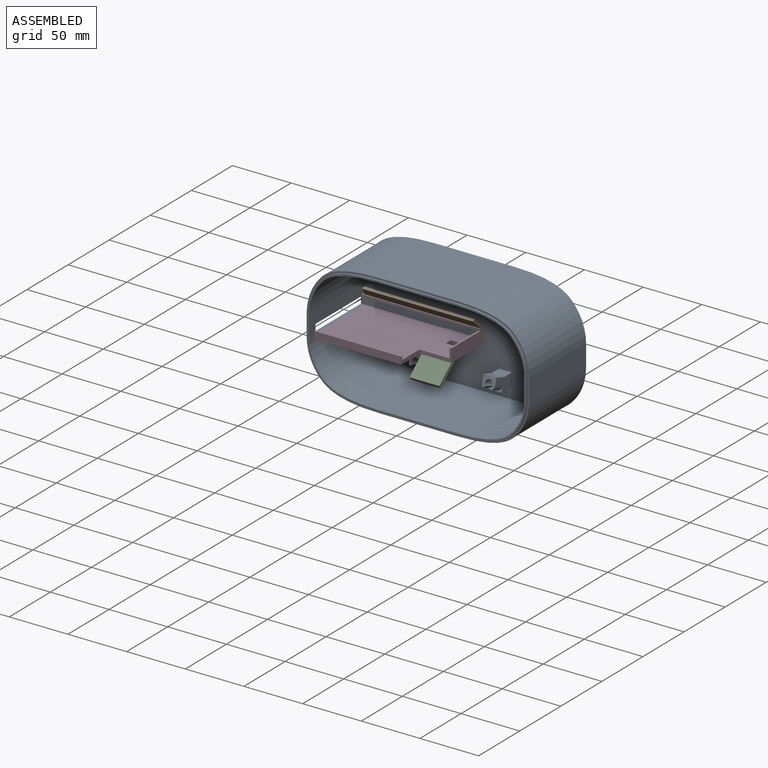
[diagram: assembled view]
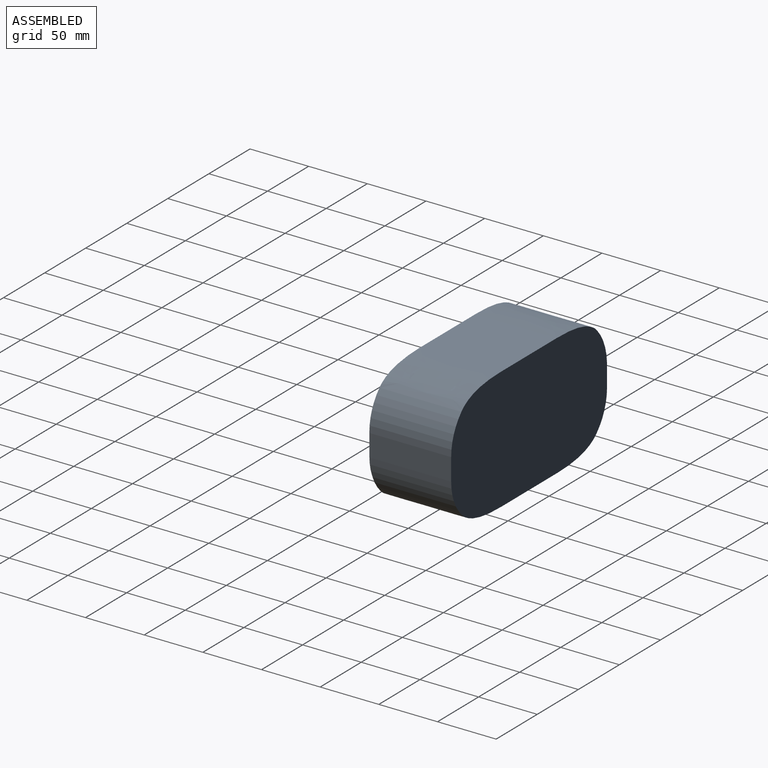
[diagram: assembled view, second angle]
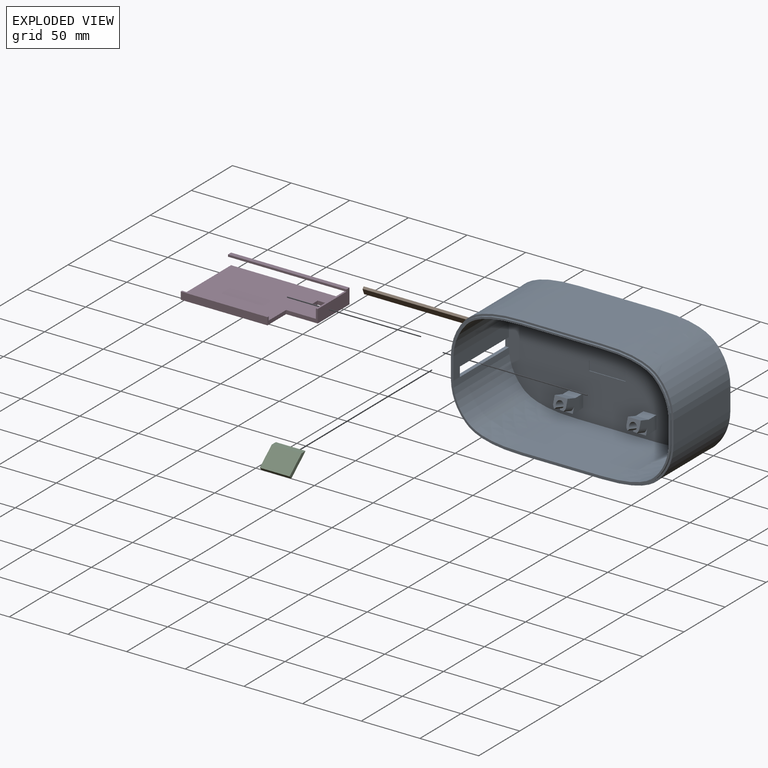
[diagram: exploded view]
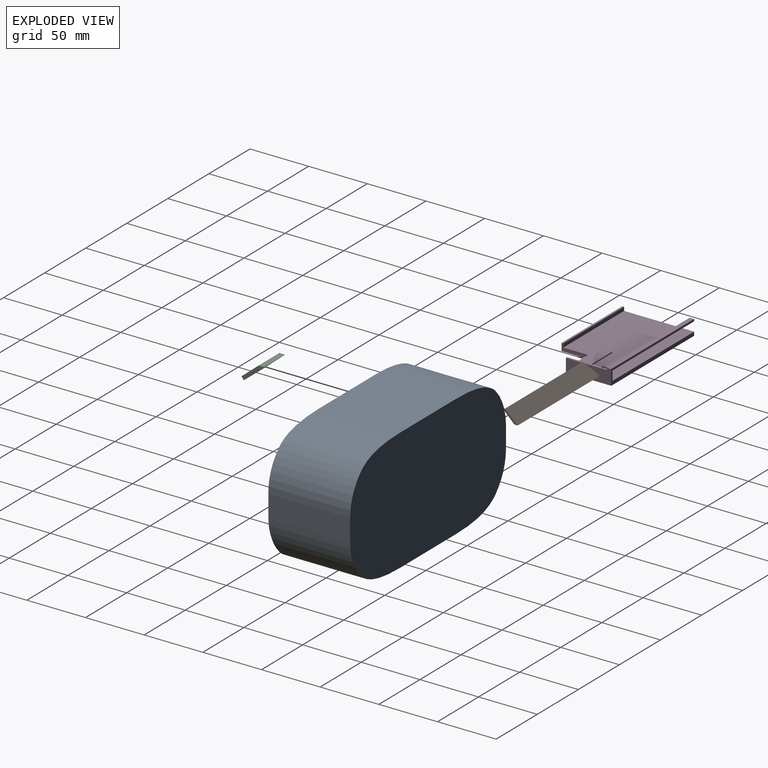
[diagram: exploded view, second angle]
ASSEMBLY  parts=4 mates=3
PART A: 72 faces, bbox 189.7x104.1x70.8 mm
  f0: plane 11x9.25mm, normal (0,1,0), area 101.8mm2, adj f2,f46,f48,f56
  f1: plane 11x9.25mm, normal (0,1,0), area 101.8mm2, adj f3,f46,f49,f63
  f2: plane 20.67x14.04mm, normal (1,0,0), area 179.3mm2, adj f0,f46,f47,f52,f55,f56,f59
  f3: plane 20.67x14.04mm, normal (-1,0,0), area 179.3mm2, adj f1,f46,f50,f51,f63,f64,f66
  f4: plane 69.22x18.88mm, normal (-1,0,0), area 828.9mm2, adj f5,f26,f27,f42,f43,f45,f46
  f5: plane 189.71x104.14mm, normal (0,0,1), area 805.4mm2, adj f4,f17,f18,f19,f20,f21,f22,f23
  f6: plane 67.8x67.63mm, normal (0,-1,0), area 4585.5mm2, adj f7,f28,f41,f46
  f7: extruded ~67.63x46.25mm, area 3302.1mm2, adj f6,f8,f41,f46
  f8: cylinder r=39.45mm len=67.63mm, axis (0,0,-1), area 2093.1mm2, adj f7,f9,f41,f46
  f9: plane 67.63x18.88mm, normal (-1,0,0), area 1276.9mm2, adj f8,f10,f41,f46
  f10: cylinder r=39.45mm len=67.63mm, axis (0,0,-1), area 2093.1mm2, adj f9,f11,f41,f46
  f11: extruded ~67.63x46.25mm, area 3302.1mm2, adj f10,f12,f41,f46
  f12: plane 67.8x67.63mm, normal (0,1,0), area 4585.5mm2, adj f11,f13,f41,f46
  f13: extruded ~67.63x46.25mm, area 3302.1mm2, adj f12,f14,f41,f46
  f14: cylinder r=39.45mm len=67.63mm, axis (0,0,-1), area 2093.1mm2, adj f13,f15,f41,f44,f46
  f15: plane 67.63x18.84mm, normal (1,0,0), area 795.8mm2, adj f14,f16,f41,f42,f43,f46
  f16: cylinder r=42.63mm len=67.63mm, axis (0,0,-1), area 2084.9mm2, adj f15,f28,f41,f46
  f17: extruded ~69.22x48.52mm, area 3555.3mm2, adj f5,f18,f27,f45
  f18: plane 69.22x67.8mm, normal (0,-1,0), area 4693.1mm2, adj f5,f17,f19,f45
  f19: extruded ~69.22x48.52mm, area 3555.3mm2, adj f5,f18,f20,f45
  f20: cylinder r=42.63mm len=69.22mm, axis (0,0,-1), area 2311.6mm2, adj f5,f19,f21,f45
  f21: plane 69.22x18.88mm, normal (1,0,0), area 1306.9mm2, adj f5,f20,f22,f45
  f22: cylinder r=42.63mm len=69.22mm, axis (0,0,-1), area 2311.6mm2, adj f5,f21,f23,f45
  f23: extruded ~69.22x48.52mm, area 3555.3mm2, adj f5,f22,f24,f45
  f24: plane 69.22x67.8mm, normal (0,1,0), area 4693.1mm2, adj f5,f23,f25,f45
  f25: extruded ~69.22x48.59mm, area 3562.3mm2, adj f5,f24,f26,f45
  f26: cylinder r=45.8mm len=69.22mm, axis (0,0,-1), area 2296.3mm2, adj f4,f5,f25,f45
  f27: cylinder r=42.63mm len=69.22mm, axis (0,0,-1), area 2311.6mm2, adj f4,f5,f17,f44,f45
  f28: extruded ~67.63x46.28mm, area 3305.2mm2, adj f6,f16,f41,f46
  f29: plane 67.8x1.59mm, normal (0,-1,0), area 107.6mm2, adj f5,f30,f40,f41
  f30: extruded ~47.39x12.06mm, area 79.5mm2, adj f5,f29,f31,f41
  f31: cylinder r=41.04mm len=28.98mm, axis (0,0,-1), area 51.1mm2, adj f5,f30,f32,f41
  f32: plane 18.88x1.59mm, normal (1,0,0), area 30mm2, adj f5,f31,f33,f41
  f33: cylinder r=41.04mm len=28.98mm, axis (0,0,-1), area 51.1mm2, adj f5,f32,f34,f41
  f34: extruded ~47.39x12.06mm, area 79.5mm2, adj f5,f33,f35,f41
  f35: plane 67.8x1.59mm, normal (0,1,0), area 107.6mm2, adj f5,f34,f36,f41
  f36: extruded ~47.44x12.12mm, area 79.6mm2, adj f5,f35,f37,f41
  f37: cylinder r=44.21mm len=28.95mm, axis (0,0,-1), area 50.8mm2, adj f5,f36,f38,f41
  f38: plane 18.86x1.59mm, normal (-1,0,0), area 29.9mm2, adj f5,f37,f39,f41
  f39: cylinder r=41.04mm len=28.98mm, axis (0,0,-1), area 51.1mm2, adj f5,f38,f40,f41
  f40: extruded ~47.39x12.06mm, area 79.5mm2, adj f5,f29,f39,f41
  f41: plane 186.53x100.97mm, normal (0,0,1), area 789.5mm2, adj f6,f7,f8,f9,f10,f11,f12,f13
  f42: plane 59.74x3.18mm, normal (0,-1,0), area 189.7mm2, adj f4,f15,f43,f46
  f43: plane 8x3.18mm, normal (0,0,-1), area 25.4mm2, adj f4,f15,f42,f44
  f44: plane 59.74x3.18mm, normal (0,1,0), area 189.7mm2, adj f14,f27,f43,f46
  f45: plane 189.71x104.14mm, normal (0,0,-1), area 18066.7mm2, adj f4,f17,f18,f19,f20,f21,f22,f23
  f46: plane 186.53x97.79mm, normal (0,0,1), area 16007.2mm2, adj f0,f1,f2,f3,f4,f6,f7,f8
  f47: plane 12.7x11mm, normal (0,-1,0), area 139.7mm2, adj f2,f46,f48,f52
  f48: plane 20.67x14.04mm, normal (-1,0,0), area 179.3mm2, adj f0,f46,f47,f52,f56,f57,f59
  f49: plane 20.67x14.04mm, normal (1,0,0), area 179.3mm2, adj f1,f46,f50,f51,f62,f63,f66
  f50: plane 12.7x11mm, normal (0,-1,0), area 139.7mm2, adj f3,f46,f49,f51
  f51: plane 11x8.65mm, normal (0,0.3,0.95), area 65.3mm2, adj f3,f49,f50,f60,f61,f62,f64,f65
  f52: plane 11x8.65mm, normal (0,0.3,0.95), area 65.3mm2, adj f2,f47,f48,f53,f54,f55,f57,f58
  f53: cylinder r=3.3mm len=11.38mm, axis (0,-0.3,-0.95), area 158.1mm2, adj f52,f54,f58,f59
  f54: plane 10.16x4.52mm, normal (-0.71,-0.67,0.21), area 22.3mm2, adj f52,f53,f55,f59
  f55: cylinder r=5.5mm len=10.86mm, axis (0,-0.3,-0.95), area 43.9mm2, adj f2,f52,f54,f59
  f56: plane 11x9.7mm, normal (0,0.95,-0.3), area 111.8mm2, adj f0,f2,f48,f59
  f57: cylinder r=5.5mm len=10.86mm, axis (0,-0.3,-0.95), area 43.9mm2, adj f48,f52,f58,f59
  f58: plane 10.16x4.52mm, normal (0.71,-0.67,0.21), area 22.3mm2, adj f52,f53,f57,f59
  f59: plane 11x9.21mm, normal (0,0.3,0.95), area 61.5mm2, adj f2,f48,f53,f54,f55,f56,f57,f58
  f60: cylinder r=3.3mm len=11.38mm, axis (0,-0.3,-0.95), area 158.1mm2, adj f51,f61,f65,f66
  f61: plane 10.16x4.52mm, normal (-0.71,-0.67,0.21), area 22.3mm2, adj f51,f60,f62,f66
  f62: cylinder r=5.5mm len=10.86mm, axis (0,-0.3,-0.95), area 43.9mm2, adj f49,f51,f61,f66
  f63: plane 11x9.7mm, normal (0,0.95,-0.3), area 111.8mm2, adj f1,f3,f49,f66
  f64: cylinder r=5.5mm len=10.86mm, axis (0,-0.3,-0.95), area 43.9mm2, adj f3,f51,f65,f66
  f65: plane 10.16x4.52mm, normal (0.71,-0.67,0.21), area 22.3mm2, adj f51,f60,f64,f66
  f66: plane 11x9.21mm, normal (0,0.3,0.95), area 61.5mm2, adj f3,f49,f60,f61,f62,f63,f64,f65
  f67: plane 8x0.51mm, normal (-1,0,0), area 4.1mm2, adj f46,f68,f70,f71
  f68: plane 31x0.51mm, normal (0,-1,0), area 15.7mm2, adj f46,f67,f69,f71
  f69: plane 8x0.51mm, normal (1,0,0), area 4.1mm2, adj f46,f68,f70,f71
  f70: plane 31x0.51mm, normal (0,1,0), area 15.7mm2, adj f46,f67,f69,f71
  f71: plane 31x8mm, normal (0,0,1), area 248mm2, adj f67,f68,f69,f70
PART B: 7 faces, bbox 99.4x14.8x2 mm
  f0: plane 14.8x2.03mm, normal (1,0,0), area 27.9mm2, adj f1,f3,f4,f6
  f1: plane 94.27x2.03mm, normal (0,1,0), area 191.6mm2, adj f0,f2,f3,f4
  f2: plane 12.7x5.08mm, normal (-0.93,0.37,0), area 27.8mm2, adj f1,f3,f4,f5
  f3: plane 99.35x12.7mm, normal (0,0,1), area 1229.5mm2, adj f0,f1,f2,f6
  f4: plane 99.35x14.8mm, normal (0,0,-1), area 1438.6mm2, adj f0,f1,f2,f5,f6
  f5: plane 2.1x2.03mm, normal (-1,0,0), area 2.1mm2, adj f2,f4,f6
  f6: plane 99.35x2.1mm, normal (0,-0.69,0.72), area 290.6mm2, adj f0,f3,f4,f5
PART C: 6 faces, bbox 25.4x22.8x3.2 mm
  f0: plane 25.4x3.18mm, normal (0,-1,0), area 80.6mm2, adj f1,f2,f3,f4
  f1: plane 22.83x3.18mm, normal (1,0,0), area 66.5mm2, adj f0,f3,f4,f5
  f2: plane 22.83x3.18mm, normal (-1,0,0), area 66.5mm2, adj f0,f3,f4,f5
  f3: plane 25.4x22.83mm, normal (0,0,1), area 580mm2, adj f0,f1,f2,f5
  f4: plane 25.4x19.05mm, normal (0,0,-1), area 483.9mm2, adj f0,f1,f2,f5
  f5: plane 25.4x3.78mm, normal (0,0.64,-0.77), area 125.5mm2, adj f1,f2,f3,f4
PART D: 20 faces, bbox 61.3x100.9x12.9 mm
  f0: plane 61.33x6.35mm, normal (0,1,0), area 199.7mm2, adj f7,f8,f9,f10,f11,f12
  f1: plane 22.64x6.35mm, normal (0,-1,0), area 76.9mm2, adj f2,f8,f9,f10,f11,f12
  f2: plane 26.99x11.18mm, normal (-1,0,0), area 98.4mm2, adj f1,f8,f9,f13,f14,f15
  f3: plane 6.35x3.18mm, normal (0,-1,0), area 20.2mm2, adj f4,f6,f8,f9
  f4: plane 13.72x3.18mm, normal (-1,0,0), area 43.5mm2, adj f3,f5,f8,f9
  f5: plane 6.35x3.18mm, normal (0,1,0), area 20.2mm2, adj f4,f6,f8,f9
  f6: plane 13.72x3.18mm, normal (1,0,0), area 43.5mm2, adj f3,f5,f8,f9
  f7: plane 100.94x12.89mm, normal (1,0,0), area 506.2mm2, adj f0,f8,f9,f13,f14,f16,f17,f18
  f8: plane 99.35x59.74mm, normal (0,0,1), area 5313.2mm2, adj f0,f1,f2,f3,f4,f5,f6,f7
  f9: plane 100.94x61.33mm, normal (0,0,-1), area 5492mm2, adj f0,f1,f2,f3,f4,f5,f6,f7
  f10: plane 73.95x3.18mm, normal (1,0,0), area 234.8mm2, adj f0,f1,f8,f12
  f11: plane 73.95x6.35mm, normal (-1,0,0), area 469.6mm2, adj f0,f1,f9,f12
  f12: plane 73.95x1.59mm, normal (0,0,1), area 117.4mm2, adj f0,f1,f10,f11
  f13: plane 38.68x8mm, normal (0,1,0), area 309.5mm2, adj f2,f7,f8,f15,f16
  f14: plane 38.68x12.89mm, normal (0,-1,0), area 438.8mm2, adj f2,f7,f9,f15,f18,f19
  f15: plane 34.87x1.59mm, normal (0,0,1), area 55.4mm2, adj f2,f13,f14,f19
  f16: plane 99.35x3.81mm, normal (0,0,-1), area 378.5mm2, adj f7,f13,f17,f19
  f17: plane 3.81x1.71mm, normal (0,1,0), area 6.5mm2, adj f7,f16,f18,f19
  f18: plane 100.94x3.81mm, normal (0,0,1), area 384.6mm2, adj f7,f14,f17,f19
  f19: plane 100.94x1.71mm, normal (-1,0,0), area 173.1mm2, adj f14,f15,f16,f17,f18
PLACE A rot(axis=(1,0,0),90deg) t=(5.72,33.84,4.13)mm fixed
PLACE B rot(axis=(1,0,0),136deg) t=(-34.69,27.76,10.28)mm
PLACE C rot(axis=(0,0.94,0.34),180deg) t=(2.29,-12.14,-14.61)mm
PLACE D rot(axis=(0,0,1),90deg) t=(-36.28,3.97,-8.49)mm
MATE fastened D.f0 <-> A.f15  axis (-1,0,0) through (-85.95,33.84,-5.31)mm
MATE fastened C.f5 <-> D.f9  axis (0,0,1) through (14.99,-4.84,-8.49)mm
MATE fastened D.f18 <-> B.f6  axis (0,0,1) through (14.99,33.84,4.4)mm
